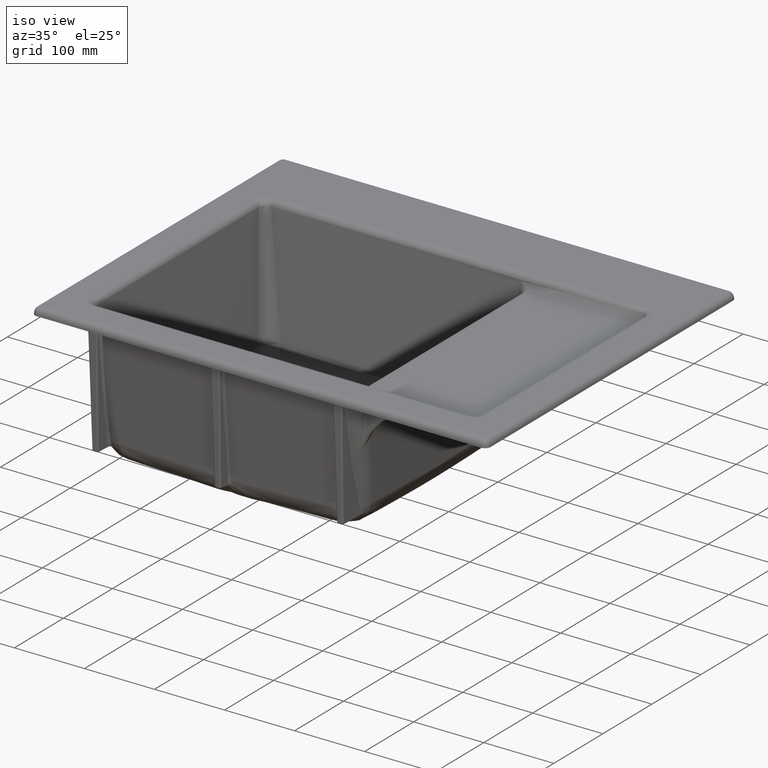
[diagram: clean part render]
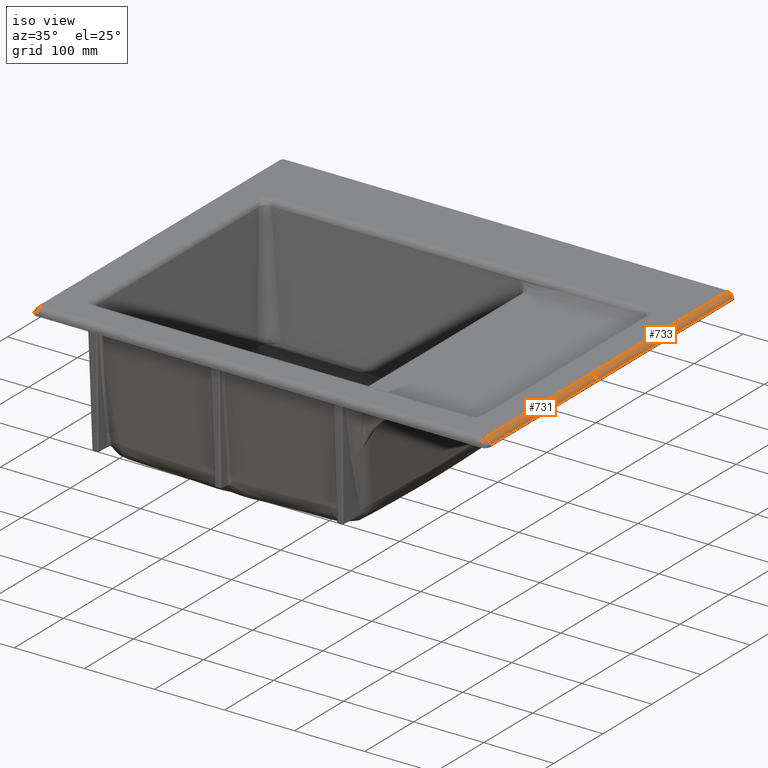
[diagram: same view with one multi-face feature highlighted, each face labeled with its STEP entity id]
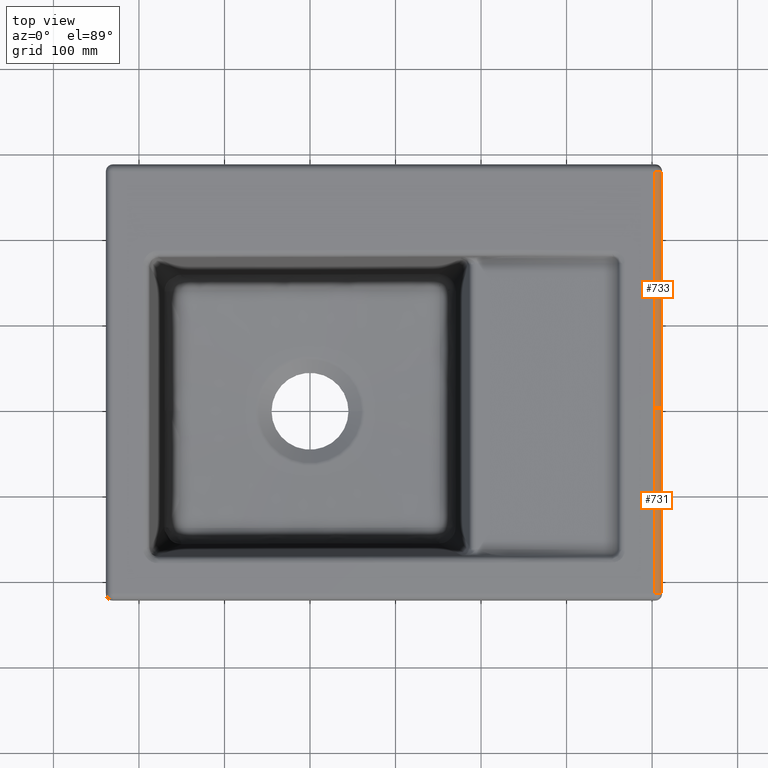
[diagram: same view with one multi-face feature highlighted, each face labeled with its STEP entity id]
A machine part, iso view. The highlighted faces form ONE feature: a constant-radius fillet chain: 2 tangent blend faces with common blend radius 8 mm. The faces share edges in the B-rep.
A second angle (top view) of the same feature is appended — it is thin or edge-on in the first view.
Their STEP definitions:
[1] entity #733 (Cylinder):
#213=LINE('',#6041,#291);
#221=LINE('',#6217,#299);
#291=VECTOR('',#4232,1.);
#299=VECTOR('',#4244,1.);
#376=CYLINDRICAL_SURFACE('',#4002,7.99999999999941);
#465=CIRCLE('',#3997,8.);
#467=CIRCLE('',#4001,8.);
#733=ADVANCED_FACE('',(#1022),#376,.T.);
#1022=FACE_OUTER_BOUND('',#1291,.T.);
#1291=EDGE_LOOP('',(#2031,#2032,#2033,#2034));
#2031=ORIENTED_EDGE('',*,*,#3377,.T.);
#2032=ORIENTED_EDGE('',*,*,#3031,.F.);
#2033=ORIENTED_EDGE('',*,*,#3379,.F.);
#2034=ORIENTED_EDGE('',*,*,#3042,.F.);
#2683=VERTEX_POINT('',#6040);
#2684=VERTEX_POINT('',#6042);
#2693=VERTEX_POINT('',#6216);
#2694=VERTEX_POINT('',#6218);
#3031=EDGE_CURVE('',#2683,#2684,#213,.T.);
#3042=EDGE_CURVE('',#2693,#2694,#221,.T.);
#3377=EDGE_CURVE('',#2693,#2684,#465,.T.);
#3379=EDGE_CURVE('',#2694,#2683,#467,.T.);
#3997=AXIS2_PLACEMENT_3D('',#15001,#4449,#4450);
#4001=AXIS2_PLACEMENT_3D('',#15005,#4457,#4458);
#4002=AXIS2_PLACEMENT_3D('',#15006,#4459,#4460);
#4232=DIRECTION('',(-1.49357431381849E-12,-1.,0.));
#4244=DIRECTION('',(1.49357431381839E-12,1.,0.));
#4449=DIRECTION('',(-3.29383187887546E-13,1.,-3.5573462494669E-15));
#4450=DIRECTION('',(1.,3.29383161099938E-13,0.));
#4457=DIRECTION('',(1.49383197521515E-12,1.,-6.93889390391241E-15));
#4458=DIRECTION('',(1.,-1.49186218934005E-12,0.));
#4459=DIRECTION('',(1.38715603357519E-12,1.,6.31628642235331E-15));
#4460=DIRECTION('',(-0.999999999999998,1.38777878078155E-12,0.));
#6040=CARTESIAN_POINT('',(411.362919261028,276.812870199502,212.836227706562));
#6041=CARTESIAN_POINT('',(411.362919260821,138.414168825869,212.836227706562));
#6042=CARTESIAN_POINT('',(411.362919260719,0.015467452235185,212.836227706573));
#6216=CARTESIAN_POINT('',(403.406744097669,0.0154674522326315,220.000000000421));
#6217=CARTESIAN_POINT('',(403.406744097876,138.414168825873,220.000000000421));
#6218=CARTESIAN_POINT('',(403.406744098082,276.812870199513,220.000000000421));
#15001=CARTESIAN_POINT('',(403.406744097775,0.0154674522325614,212.000000000421));
#15005=CARTESIAN_POINT('',(403.406744098082,276.812870199513,212.000000000421));
#15006=CARTESIAN_POINT('',(403.406744098083,276.812870199513,212.000000000422));
[2] entity #731 (Cylinder):
#220=LINE('',#6215,#298);
#230=LINE('',#7580,#308);
#298=VECTOR('',#4243,1.);
#308=VECTOR('',#4269,1.);
#374=CYLINDRICAL_SURFACE('',#3998,7.99999999999958);
#464=CIRCLE('',#3995,8.);
#465=CIRCLE('',#3997,8.);
#731=ADVANCED_FACE('',(#1020),#374,.T.);
#1020=FACE_OUTER_BOUND('',#1289,.T.);
#1289=EDGE_LOOP('',(#2023,#2024,#2025,#2026));
#2023=ORIENTED_EDGE('',*,*,#3376,.T.);
#2024=ORIENTED_EDGE('',*,*,#3088,.F.);
#2025=ORIENTED_EDGE('',*,*,#3377,.F.);
#2026=ORIENTED_EDGE('',*,*,#3041,.F.);
#2684=VERTEX_POINT('',#6042);
#2692=VERTEX_POINT('',#6214);
#2693=VERTEX_POINT('',#6216);
#2737=VERTEX_POINT('',#7581);
#3041=EDGE_CURVE('',#2692,#2693,#220,.T.);
#3088=EDGE_CURVE('',#2684,#2737,#230,.T.);
#3376=EDGE_CURVE('',#2692,#2737,#464,.T.);
#3377=EDGE_CURVE('',#2693,#2684,#465,.T.);
#3995=AXIS2_PLACEMENT_3D('',#14999,#4445,#4446);
#3997=AXIS2_PLACEMENT_3D('',#15001,#4449,#4450);
#3998=AXIS2_PLACEMENT_3D('',#15002,#4451,#4452);
#4243=DIRECTION('',(-3.51820774067268E-13,1.,0.));
#4269=DIRECTION('',(3.49386028225979E-13,-1.,0.));
#4445=DIRECTION('',(-3.31412975391098E-13,1.,4.59927894924022E-27));
#4446=DIRECTION('',(1.,3.33066907387547E-13,0.));
#4449=DIRECTION('',(-3.29383187887546E-13,1.,-3.5573462494669E-15));
#4450=DIRECTION('',(1.,3.29383161099938E-13,0.));
#4451=DIRECTION('',(-3.29574204088503E-13,1.,-1.72396697739529E-15));
#4452=DIRECTION('',(-0.999999999999998,-3.29574167029561E-13,0.));
#6042=CARTESIAN_POINT('',(411.362919260719,0.015467452235185,212.836227706573));
#6214=CARTESIAN_POINT('',(403.406744097847,-216.7819352739,220.000000000421));
#6215=CARTESIAN_POINT('',(403.40674409781,-108.383233910833,220.000000000421));
#6216=CARTESIAN_POINT('',(403.406744097669,0.0154674522326315,220.000000000421));
#7580=CARTESIAN_POINT('',(411.362919260757,-108.383233910831,212.836227706563));
#7581=CARTESIAN_POINT('',(411.362919260792,-216.781935273899,212.836227706563));
#14999=CARTESIAN_POINT('',(403.406744097844,-216.7819352739,212.000000000443));
#15001=CARTESIAN_POINT('',(403.406744097775,0.0154674522325614,212.000000000421));
#15002=CARTESIAN_POINT('',(403.406744097775,0.0154674522326038,212.000000000421));